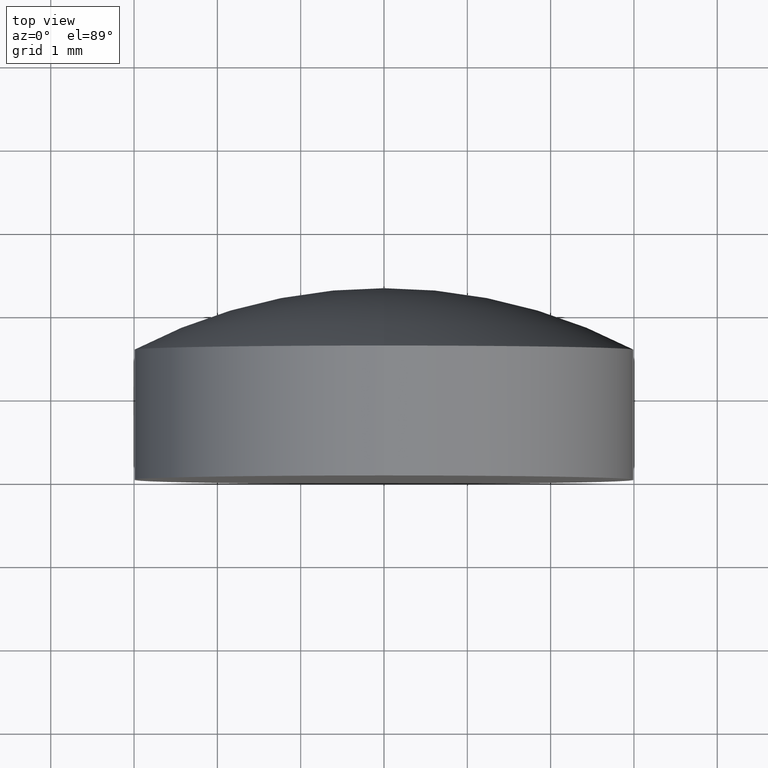
[diagram: clean part render]
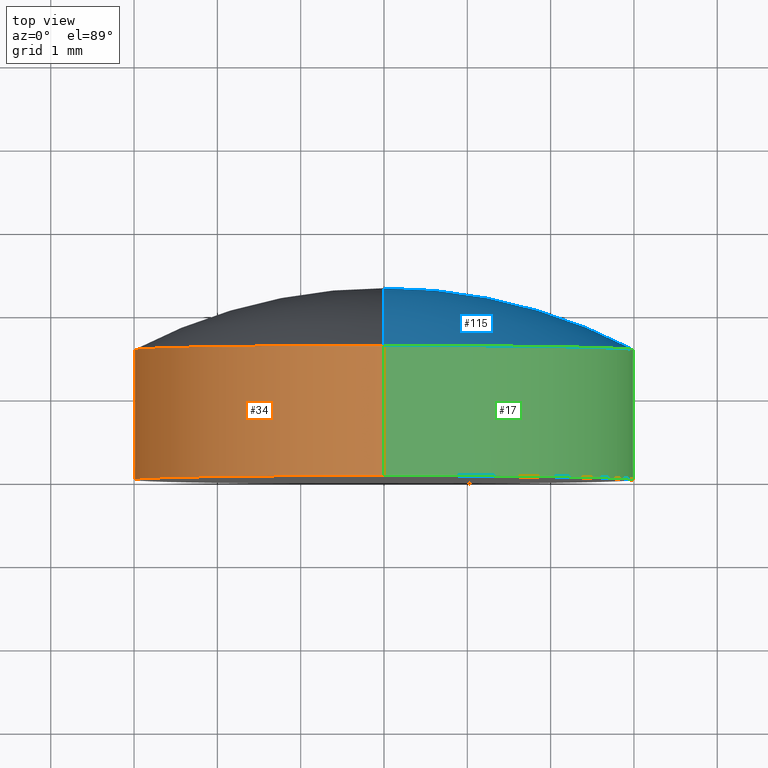
[diagram: same view with three faces highlighted in distinct colors, each labeled with its STEP entity id]
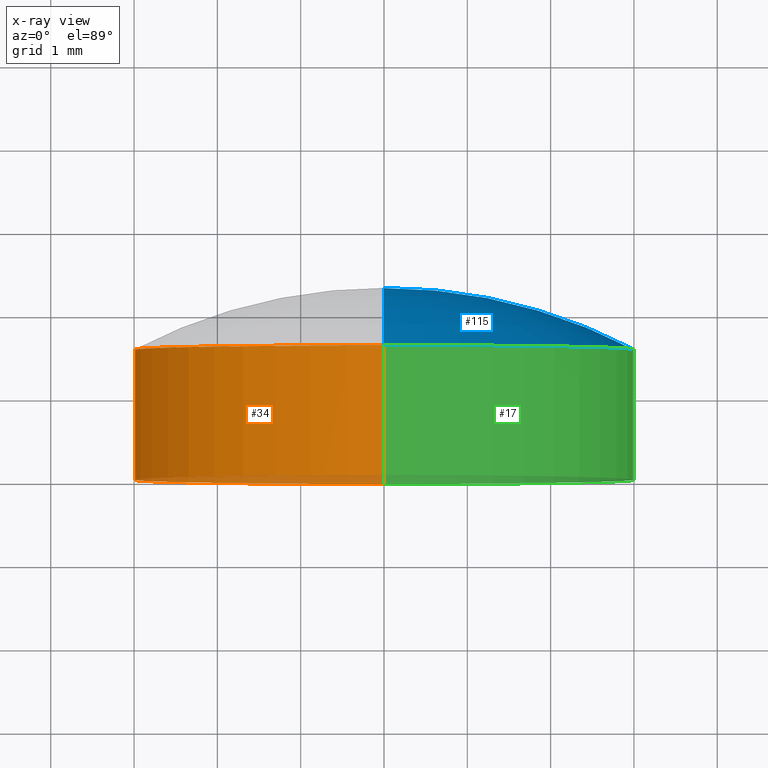
[diagram: x-ray of the same camera — body ghosted, the three highlighted faces saturated]
A machine part, top view with three faces highlighted in distinct colors.
The next image is the same camera in x-ray (body ghosted, the three faces saturated) — at least one of them is partly hidden behind the body in this view.
Their STEP definitions:

[orange] entity #34 — the highlighted cylindrical surface (partial cylindrical patch) has radius 3 mm, axis along (-0, 1, -0).
#4 = ORIENTED_EDGE ( 'NONE', *, *, #200, .F. ) ;
#5 = DIRECTION ( 'NONE',  ( -0.000000000000000000, 1.000000000000000000, -0.000000000000000000 ) ) ;
#13 = CIRCLE ( 'NONE', #109, 3.000000000000000000 ) ;
#20 = CYLINDRICAL_SURFACE ( 'NONE', #125, 3.000000000000000000 ) ;
#33 = VERTEX_POINT ( 'NONE', #80 ) ;
#34 = ADVANCED_FACE ( 'NONE', ( #160 ), #20, .T. ) ;
#37 = ORIENTED_EDGE ( 'NONE', *, *, #46, .T. ) ;
#38 = DIRECTION ( 'NONE',  ( 0.000000000000000000, 0.000000000000000000, 1.000000000000000000 ) ) ;
#46 = EDGE_CURVE ( 'NONE', #189, #187, #13, .T. ) ;
#55 = DIRECTION ( 'NONE',  ( 0.000000000000000000, 0.000000000000000000, 1.000000000000000000 ) ) ;
#67 = DIRECTION ( 'NONE',  ( 0.000000000000000000, 0.000000000000000000, 1.000000000000000000 ) ) ;
#69 = CIRCLE ( 'NONE', #95, 3.000000000000000000 ) ;
#71 = CARTESIAN_POINT ( 'NONE',  ( 0.000000000000000000, -4.336808689942017736E-16, 3.000000000000000000 ) ) ;
#72 = EDGE_CURVE ( 'NONE', #187, #33, #164, .T. ) ;
#77 = VERTEX_POINT ( 'NONE', #179 ) ;
#78 = ORIENTED_EDGE ( 'NONE', *, *, #72, .T. ) ;
#80 = CARTESIAN_POINT ( 'NONE',  ( 0.000000000000000000, 1.559999999999999831, 2.999999999999998668 ) ) ;
#81 = CARTESIAN_POINT ( 'NONE',  ( 0.000000000000000000, 2.299999999999999822, 0.000000000000000000 ) ) ;
#84 = CARTESIAN_POINT ( 'NONE',  ( 0.000000000000000000, 1.559999999999999609, 0.000000000000000000 ) ) ;
#91 = EDGE_CURVE ( 'NONE', #77, #33, #69, .T. ) ;
#93 = EDGE_LOOP ( 'NONE', ( #4, #37, #78, #112 ) ) ;
#95 = AXIS2_PLACEMENT_3D ( 'NONE', #84, #194, #38 ) ;
#104 = DIRECTION ( 'NONE',  ( -0.000000000000000000, 1.000000000000000000, -0.000000000000000000 ) ) ;
#109 = AXIS2_PLACEMENT_3D ( 'NONE', #176, #118, #55 ) ;
#112 = ORIENTED_EDGE ( 'NONE', *, *, #91, .F. ) ;
#118 = DIRECTION ( 'NONE',  ( -0.000000000000000000, 1.000000000000000000, -0.000000000000000000 ) ) ;
#119 = CARTESIAN_POINT ( 'NONE',  ( 3.673940397442059868E-16, -4.336808689942017736E-16, -3.000000000000000000 ) ) ;
#125 = AXIS2_PLACEMENT_3D ( 'NONE', #81, #5, #67 ) ;
#131 = CARTESIAN_POINT ( 'NONE',  ( 0.000000000000000000, 2.299999999999999822, 3.000000000000000000 ) ) ;
#149 = LINE ( 'NONE', #195, #159 ) ;
#156 = VECTOR ( 'NONE', #104, 1000.000000000000000 ) ;
#159 = VECTOR ( 'NONE', #178, 1000.000000000000000 ) ;
#160 = FACE_OUTER_BOUND ( 'NONE', #93, .T. ) ;
#164 = LINE ( 'NONE', #131, #156 ) ;
#176 = CARTESIAN_POINT ( 'NONE',  ( 0.000000000000000000, -4.336808689942017736E-16, 0.000000000000000000 ) ) ;
#178 = DIRECTION ( 'NONE',  ( -0.000000000000000000, 1.000000000000000000, -0.000000000000000000 ) ) ;
#179 = CARTESIAN_POINT ( 'NONE',  ( 3.673940397442058389E-16, 1.559999999999999831, -2.999999999999998668 ) ) ;
#187 = VERTEX_POINT ( 'NONE', #71 ) ;
#189 = VERTEX_POINT ( 'NONE', #119 ) ;
#194 = DIRECTION ( 'NONE',  ( -0.000000000000000000, 1.000000000000000000, -0.000000000000000000 ) ) ;
#195 = CARTESIAN_POINT ( 'NONE',  ( 3.673940397442059868E-16, 2.299999999999999822, -3.000000000000000000 ) ) ;
#200 = EDGE_CURVE ( 'NONE', #189, #77, #149, .T. ) ;

[blue] entity #115 — the highlighted toroidal blend (fillet) surface has major radius 0.0022 mm and minor (blend) radius 6.46 mm.
#1 = EDGE_CURVE ( 'NONE', #33, #77, #99, .T. ) ;
#3 = DIRECTION ( 'NONE',  ( 0.000000000000000000, 0.000000000000000000, 1.000000000000000000 ) ) ;
#7 = DIRECTION ( 'NONE',  ( 1.000000000000000000, 0.000000000000000000, 1.224646799147353207E-16 ) ) ;
#9 = DIRECTION ( 'NONE',  ( -1.000000000000000000, 0.000000000000000000, 0.000000000000000000 ) ) ;
#22 = CARTESIAN_POINT ( 'NONE',  ( 0.000000000000000000, -4.159999625418464575, -0.002199907603223083541 ) ) ;
#33 = VERTEX_POINT ( 'NONE', #80 ) ;
#39 = TOROIDAL_SURFACE ( 'NONE', #114, -0.002199907603223083541, 6.460000000000012399 ) ;
#40 = DIRECTION ( 'NONE',  ( -0.000000000000000000, 1.000000000000000000, -0.000000000000000000 ) ) ;
#41 = EDGE_CURVE ( 'NONE', #77, #97, #105, .T. ) ;
#43 = DIRECTION ( 'NONE',  ( 0.000000000000000000, 0.000000000000000000, 1.000000000000000000 ) ) ;
#49 = AXIS2_PLACEMENT_3D ( 'NONE', #161, #7, #145 ) ;
#54 = CARTESIAN_POINT ( 'NONE',  ( 0.000000000000000000, 2.299999999999999822, 0.000000000000000000 ) ) ;
#62 = ORIENTED_EDGE ( 'NONE', *, *, #151, .F. ) ;
#64 = DIRECTION ( 'NONE',  ( -0.000000000000000000, 1.000000000000000000, -0.000000000000000000 ) ) ;
#66 = EDGE_LOOP ( 'NONE', ( #157, #130, #62 ) ) ;
#77 = VERTEX_POINT ( 'NONE', #179 ) ;
#80 = CARTESIAN_POINT ( 'NONE',  ( 0.000000000000000000, 1.559999999999999831, 2.999999999999998668 ) ) ;
#97 = VERTEX_POINT ( 'NONE', #54 ) ;
#99 = CIRCLE ( 'NONE', #191, 3.000000000000000000 ) ;
#102 = DIRECTION ( 'NONE',  ( 0.000000000000000000, 0.000000000000000000, 1.000000000000000000 ) ) ;
#105 = CIRCLE ( 'NONE', #49, 6.460000000000012399 ) ;
#114 = AXIS2_PLACEMENT_3D ( 'NONE', #177, #40, #102 ) ;
#115 = ADVANCED_FACE ( 'NONE', ( #162 ), #39, .T. ) ;
#130 = ORIENTED_EDGE ( 'NONE', *, *, #41, .T. ) ;
#143 = CARTESIAN_POINT ( 'NONE',  ( 0.000000000000000000, 1.559999999999999609, 0.000000000000000000 ) ) ;
#145 = DIRECTION ( 'NONE',  ( 1.224646799147353207E-16, 0.000000000000000000, -1.000000000000000000 ) ) ;
#151 = EDGE_CURVE ( 'NONE', #33, #97, #193, .T. ) ;
#157 = ORIENTED_EDGE ( 'NONE', *, *, #1, .T. ) ;
#161 = CARTESIAN_POINT ( 'NONE',  ( -2.694109804707074809E-19, -4.159999625418464575, 0.002199907603223083541 ) ) ;
#162 = FACE_OUTER_BOUND ( 'NONE', #66, .T. ) ;
#177 = CARTESIAN_POINT ( 'NONE',  ( 0.000000000000000000, -4.159999625418464575, 0.000000000000000000 ) ) ;
#179 = CARTESIAN_POINT ( 'NONE',  ( 3.673940397442058389E-16, 1.559999999999999831, -2.999999999999998668 ) ) ;
#182 = AXIS2_PLACEMENT_3D ( 'NONE', #22, #9, #43 ) ;
#191 = AXIS2_PLACEMENT_3D ( 'NONE', #143, #64, #3 ) ;
#193 = CIRCLE ( 'NONE', #182, 6.460000000000012399 ) ;

[green] entity #17 — the highlighted cylindrical surface (partial cylindrical patch) has radius 3 mm, axis along (-0, 1, -0).
#1 = EDGE_CURVE ( 'NONE', #33, #77, #99, .T. ) ;
#3 = DIRECTION ( 'NONE',  ( 0.000000000000000000, 0.000000000000000000, 1.000000000000000000 ) ) ;
#11 = AXIS2_PLACEMENT_3D ( 'NONE', #174, #98, #19 ) ;
#17 = ADVANCED_FACE ( 'NONE', ( #79 ), #101, .T. ) ;
#19 = DIRECTION ( 'NONE',  ( 0.000000000000000000, 0.000000000000000000, 1.000000000000000000 ) ) ;
#25 = DIRECTION ( 'NONE',  ( -0.000000000000000000, 1.000000000000000000, -0.000000000000000000 ) ) ;
#33 = VERTEX_POINT ( 'NONE', #80 ) ;
#35 = EDGE_LOOP ( 'NONE', ( #142, #113, #53, #172 ) ) ;
#53 = ORIENTED_EDGE ( 'NONE', *, *, #1, .F. ) ;
#64 = DIRECTION ( 'NONE',  ( -0.000000000000000000, 1.000000000000000000, -0.000000000000000000 ) ) ;
#71 = CARTESIAN_POINT ( 'NONE',  ( 0.000000000000000000, -4.336808689942017736E-16, 3.000000000000000000 ) ) ;
#72 = EDGE_CURVE ( 'NONE', #187, #33, #164, .T. ) ;
#77 = VERTEX_POINT ( 'NONE', #179 ) ;
#79 = FACE_OUTER_BOUND ( 'NONE', #35, .T. ) ;
#80 = CARTESIAN_POINT ( 'NONE',  ( 0.000000000000000000, 1.559999999999999831, 2.999999999999998668 ) ) ;
#85 = DIRECTION ( 'NONE',  ( 0.000000000000000000, 0.000000000000000000, 1.000000000000000000 ) ) ;
#94 = CIRCLE ( 'NONE', #126, 3.000000000000000000 ) ;
#98 = DIRECTION ( 'NONE',  ( -0.000000000000000000, 1.000000000000000000, -0.000000000000000000 ) ) ;
#99 = CIRCLE ( 'NONE', #191, 3.000000000000000000 ) ;
#101 = CYLINDRICAL_SURFACE ( 'NONE', #11, 3.000000000000000000 ) ;
#104 = DIRECTION ( 'NONE',  ( -0.000000000000000000, 1.000000000000000000, -0.000000000000000000 ) ) ;
#113 = ORIENTED_EDGE ( 'NONE', *, *, #200, .T. ) ;
#119 = CARTESIAN_POINT ( 'NONE',  ( 3.673940397442059868E-16, -4.336808689942017736E-16, -3.000000000000000000 ) ) ;
#126 = AXIS2_PLACEMENT_3D ( 'NONE', #147, #25, #85 ) ;
#131 = CARTESIAN_POINT ( 'NONE',  ( 0.000000000000000000, 2.299999999999999822, 3.000000000000000000 ) ) ;
#142 = ORIENTED_EDGE ( 'NONE', *, *, #184, .T. ) ;
#143 = CARTESIAN_POINT ( 'NONE',  ( 0.000000000000000000, 1.559999999999999609, 0.000000000000000000 ) ) ;
#147 = CARTESIAN_POINT ( 'NONE',  ( 0.000000000000000000, -4.336808689942017736E-16, 0.000000000000000000 ) ) ;
#149 = LINE ( 'NONE', #195, #159 ) ;
#156 = VECTOR ( 'NONE', #104, 1000.000000000000000 ) ;
#159 = VECTOR ( 'NONE', #178, 1000.000000000000000 ) ;
#164 = LINE ( 'NONE', #131, #156 ) ;
#172 = ORIENTED_EDGE ( 'NONE', *, *, #72, .F. ) ;
#174 = CARTESIAN_POINT ( 'NONE',  ( 0.000000000000000000, 2.299999999999999822, 0.000000000000000000 ) ) ;
#178 = DIRECTION ( 'NONE',  ( -0.000000000000000000, 1.000000000000000000, -0.000000000000000000 ) ) ;
#179 = CARTESIAN_POINT ( 'NONE',  ( 3.673940397442058389E-16, 1.559999999999999831, -2.999999999999998668 ) ) ;
#184 = EDGE_CURVE ( 'NONE', #187, #189, #94, .T. ) ;
#187 = VERTEX_POINT ( 'NONE', #71 ) ;
#189 = VERTEX_POINT ( 'NONE', #119 ) ;
#191 = AXIS2_PLACEMENT_3D ( 'NONE', #143, #64, #3 ) ;
#195 = CARTESIAN_POINT ( 'NONE',  ( 3.673940397442059868E-16, 2.299999999999999822, -3.000000000000000000 ) ) ;
#200 = EDGE_CURVE ( 'NONE', #189, #77, #149, .T. ) ;